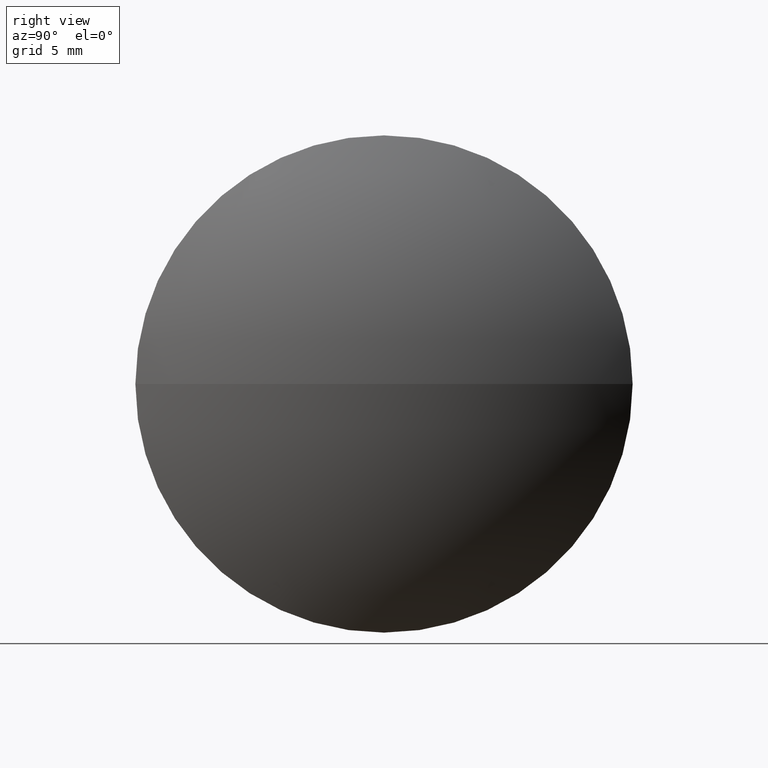
[diagram: clean part render]
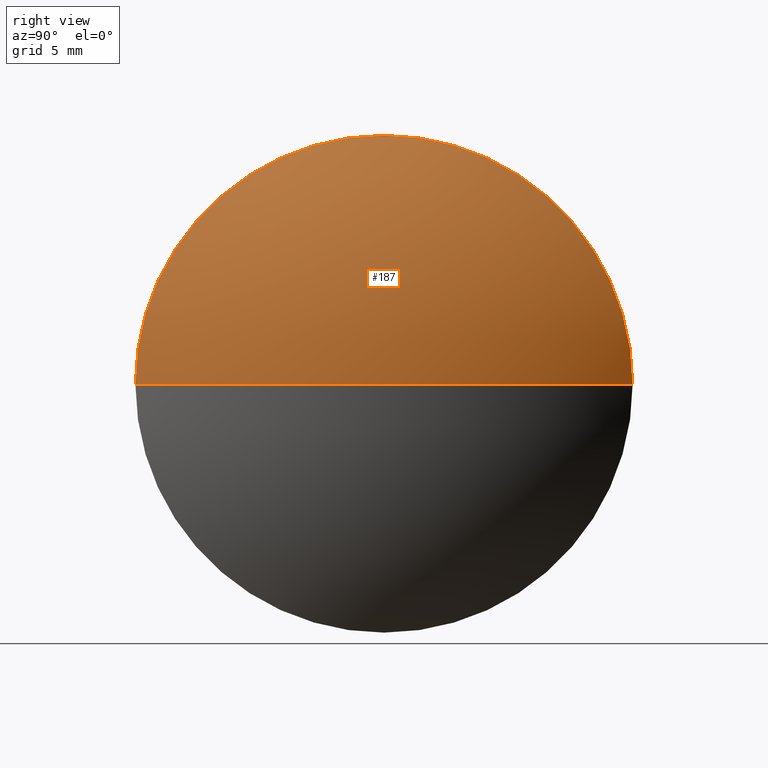
[diagram: same view with one face highlighted and labeled with its STEP entity id]
A machine part, right view. The second image highlights one B-rep face of the part: STEP entity #187.
In plain terms, the highlighted spherical surface has radius 21.5538 mm.
Its self-contained STEP definition (entity closure, byte-faithful):
#1 = ORIENTED_EDGE ( 'NONE', *, *, #338, .F. ) ;
#14 = SPHERICAL_SURFACE ( 'NONE', #153, 21.55382375359854700 ) ;
#15 = VERTEX_POINT ( 'NONE', #124 ) ;
#19 = CIRCLE ( 'NONE', #25, 21.55382375359854300 ) ;
#20 = DIRECTION ( 'NONE',  ( -0.0000000000000000000, 0.0000000000000000000, -1.000000000000000000 ) ) ;
#21 = AXIS2_PLACEMENT_3D ( 'NONE', #78, #308, #275 ) ;
#25 = AXIS2_PLACEMENT_3D ( 'NONE', #40, #294, #236 ) ;
#40 = CARTESIAN_POINT ( 'NONE',  ( 70.04300607658039700, 48.61611302318478100, 0.0000000000000000000 ) ) ;
#45 = CIRCLE ( 'NONE', #333, 12.69999999999999600 ) ;
#53 = EDGE_CURVE ( 'NONE', #15, #138, #19, .T. ) ;
#78 = CARTESIAN_POINT ( 'NONE',  ( 87.45786520323396500, 48.61611302318478100, 0.0000000000000000000 ) ) ;
#80 = ORIENTED_EDGE ( 'NONE', *, *, #86, .F. ) ;
#86 = EDGE_CURVE ( 'NONE', #15, #89, #97, .T. ) ;
#89 = VERTEX_POINT ( 'NONE', #146 ) ;
#97 = CIRCLE ( 'NONE', #323, 21.55382375359855000 ) ;
#121 = DIRECTION ( 'NONE',  ( 0.0000000000000000000, 1.000000000000000000, 1.224646799147353200E-016 ) ) ;
#124 = CARTESIAN_POINT ( 'NONE',  ( 91.59682983017894700, 48.61611302318478100, 0.0000000000000000000 ) ) ;
#126 = CARTESIAN_POINT ( 'NONE',  ( 87.45786520323396500, 61.31611302318477600, 0.0000000000000000000 ) ) ;
#138 = VERTEX_POINT ( 'NONE', #126 ) ;
#140 = DIRECTION ( 'NONE',  ( -1.000000000000000000, -0.0000000000000000000, -0.0000000000000000000 ) ) ;
#141 = CARTESIAN_POINT ( 'NONE',  ( 87.45786520323396500, 48.61611302318478100, 12.69999999999999600 ) ) ;
#146 = CARTESIAN_POINT ( 'NONE',  ( 87.45786520323396500, 35.91611302318478500, -1.555301434917138000E-015 ) ) ;
#153 = AXIS2_PLACEMENT_3D ( 'NONE', #317, #20, #267 ) ;
#157 = ORIENTED_EDGE ( 'NONE', *, *, #53, .T. ) ;
#166 = CARTESIAN_POINT ( 'NONE',  ( 87.45786520323396500, 48.61611302318478100, 0.0000000000000000000 ) ) ;
#170 = EDGE_LOOP ( 'NONE', ( #80, #157, #293, #1 ) ) ;
#187 = ADVANCED_FACE ( 'NONE', ( #335 ), #14, .T. ) ;
#194 = DIRECTION ( 'NONE',  ( 0.0000000000000000000, 0.0000000000000000000, 1.000000000000000000 ) ) ;
#208 = CARTESIAN_POINT ( 'NONE',  ( 70.04300607658039700, 48.61611302318478100, 0.0000000000000000000 ) ) ;
#236 = DIRECTION ( 'NONE',  ( 1.000000000000000000, 0.0000000000000000000, 0.0000000000000000000 ) ) ;
#259 = EDGE_CURVE ( 'NONE', #299, #138, #343, .T. ) ;
#267 = DIRECTION ( 'NONE',  ( 0.0000000000000000000, 1.000000000000000000, 0.0000000000000000000 ) ) ;
#275 = DIRECTION ( 'NONE',  ( 0.0000000000000000000, 0.0000000000000000000, 1.000000000000000000 ) ) ;
#291 = DIRECTION ( 'NONE',  ( 0.0000000000000000000, 1.224646799147353200E-016, -1.000000000000000000 ) ) ;
#293 = ORIENTED_EDGE ( 'NONE', *, *, #259, .F. ) ;
#294 = DIRECTION ( 'NONE',  ( -0.0000000000000000000, 0.0000000000000000000, 1.000000000000000000 ) ) ;
#299 = VERTEX_POINT ( 'NONE', #141 ) ;
#308 = DIRECTION ( 'NONE',  ( -1.000000000000000000, -0.0000000000000000000, -0.0000000000000000000 ) ) ;
#317 = CARTESIAN_POINT ( 'NONE',  ( 70.04300607658039700, 48.61611302318478100, 0.0000000000000000000 ) ) ;
#323 = AXIS2_PLACEMENT_3D ( 'NONE', #208, #291, #121 ) ;
#333 = AXIS2_PLACEMENT_3D ( 'NONE', #166, #140, #194 ) ;
#335 = FACE_OUTER_BOUND ( 'NONE', #170, .T. ) ;
#338 = EDGE_CURVE ( 'NONE', #89, #299, #45, .T. ) ;
#343 = CIRCLE ( 'NONE', #21, 12.69999999999999600 ) ;